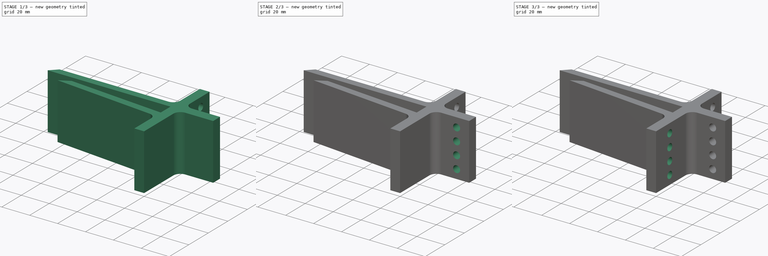
[diagram: build sequence overview — one tinted view per stage of 3, left to right]
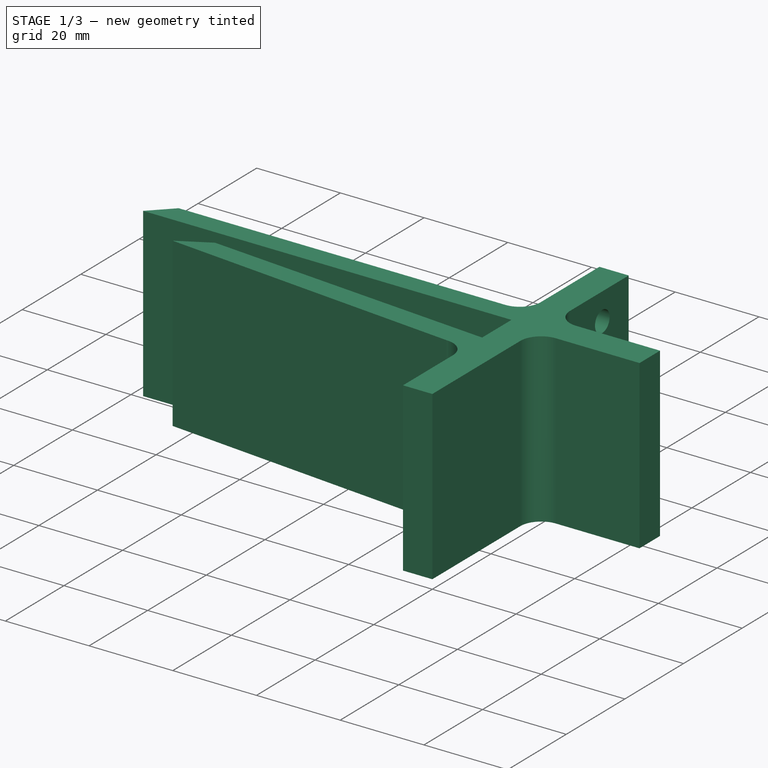
[diagram: stage 1 of 3 — iso view after this stage's code; geometry added in this stage tinted green]
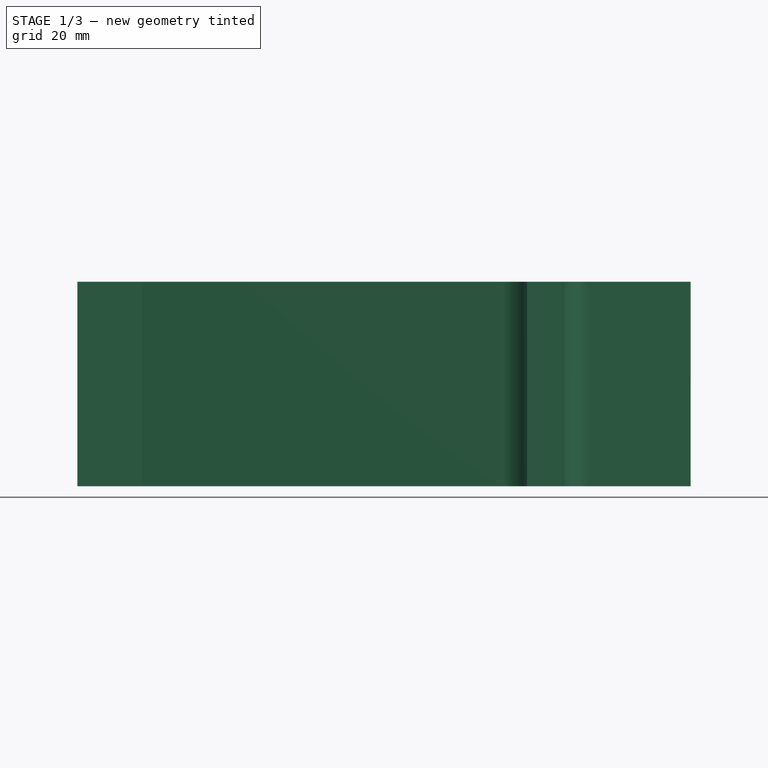
[diagram: stage 1 of 3 — front view after this stage's code; geometry added in this stage tinted green]
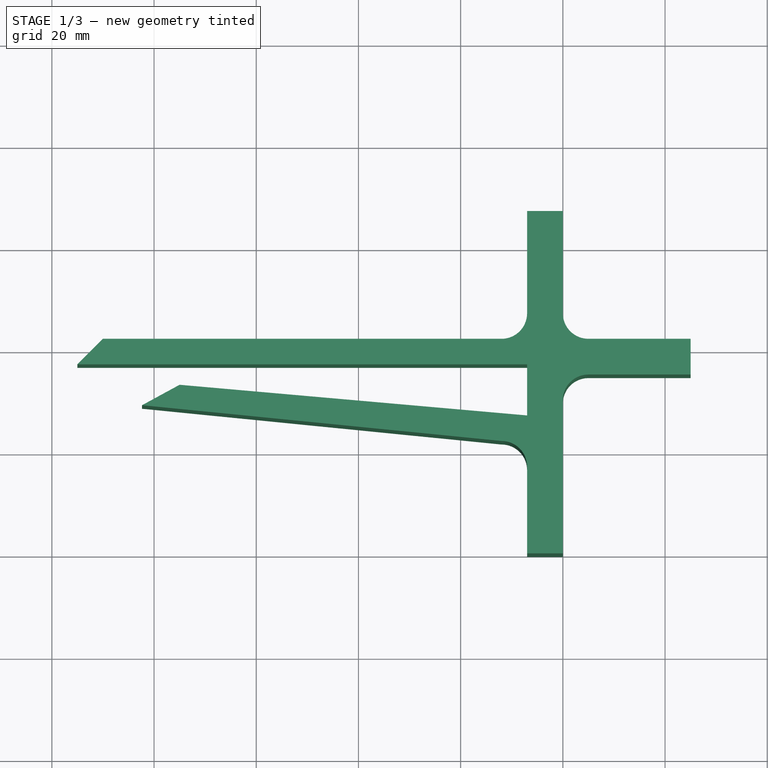
[diagram: stage 1 of 3 — top view after this stage's code; geometry added in this stage tinted green]
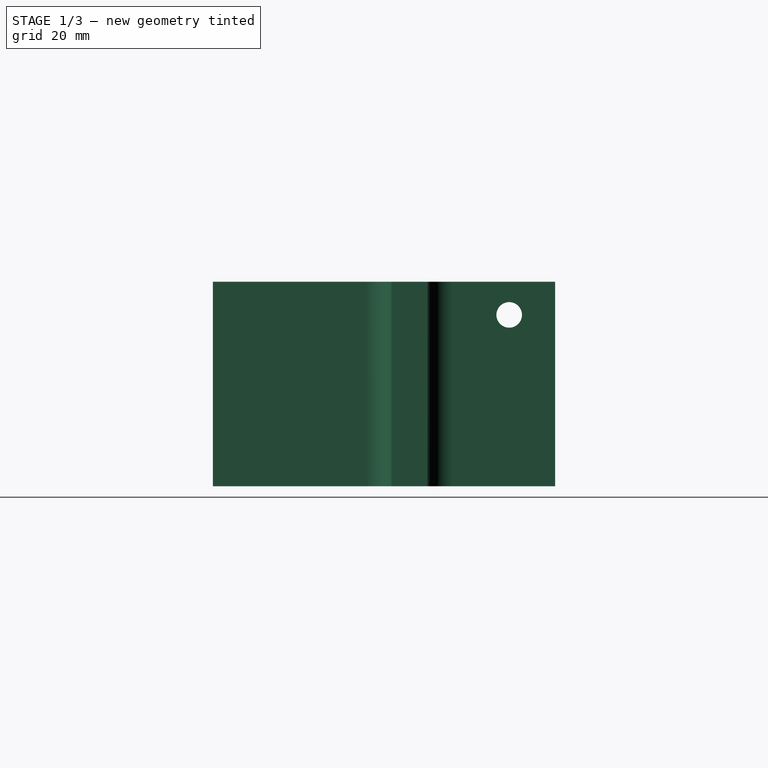
[diagram: stage 1 of 3 — right view after this stage's code; geometry added in this stage tinted green]
FCSTD DOCUMENT  (FreeCAD 0.15R4671 (Git))
Label: tubeHolderArrondis
License: CC-BY 3.0
LicenseURL: http://creativecommons.org/licenses/by/3.0/
objects: Sketcher::SketchObject×4, PartDesign::Pocket×3, PartDesign::LinearPattern×3, PartDesign::Pad×1
note: 15 computed .brp shape members not serialized (recipe doc carries the construction recipe); baked Part::Feature solids carry a one-line shape summary decoded from their .brp

FEATURE [Sketcher::SketchObject] Sketch  label="Profil"
  sketch-geometry (20):
    g0: LineSegment StartX=-7 StartY=0 StartZ=0 EndX=0 EndY=0 EndZ=0
    g1: LineSegment StartX=0 StartY=0 StartZ=0 EndX=0 EndY=30 EndZ=0
    g2: LineSegment StartX=5 StartY=35 StartZ=0 EndX=25 EndY=35 EndZ=0
    g3: ArcOfCircle CenterX=5 CenterY=30 CenterZ=0 NormalX=0 NormalY=0 NormalZ=1 Radius=5 StartAngle=1.5708 EndAngle=3.14159
    g4: LineSegment StartX=25 StartY=35 StartZ=0 EndX=25 EndY=42 EndZ=0
    g5: LineSegment StartX=25 StartY=42 StartZ=0 EndX=5 EndY=42 EndZ=0
    g6: LineSegment StartX=0 StartY=47 StartZ=0 EndX=0 EndY=67 EndZ=0
    g7: ArcOfCircle CenterX=5 CenterY=47 CenterZ=0 NormalX=0 NormalY=0 NormalZ=1 Radius=5 StartAngle=3.14159 EndAngle=4.71239
    g8: LineSegment StartX=0 StartY=67 StartZ=0 EndX=-7 EndY=67 EndZ=0
    g9: LineSegment StartX=-7 StartY=67 StartZ=0 EndX=-7 EndY=47 EndZ=0
    g10: ArcOfCircle CenterX=-12 CenterY=47 CenterZ=0 NormalX=0 NormalY=0 NormalZ=1 Radius=5 StartAngle=4.71239 EndAngle=6.28319
    g11: LineSegment StartX=-90 StartY=42 StartZ=0 EndX=-95 EndY=37 EndZ=0
    g12: LineSegment StartX=-95 StartY=37 StartZ=0 EndX=-7 EndY=37 EndZ=0
    g13: LineSegment StartX=-7 StartY=37 StartZ=0 EndX=-7 EndY=27 EndZ=0
    g14: LineSegment StartX=-7 StartY=27 StartZ=0 EndX=-75 EndY=33 EndZ=0
    g15: LineSegment StartX=-75 StartY=33 StartZ=0 EndX=-82.3516 EndY=29 EndZ=0
    g16: LineSegment StartX=-82.3516 StartY=29 StartZ=0 EndX=-12 EndY=22 EndZ=0
    g17: LineSegment StartX=-7 StartY=17 StartZ=0 EndX=-7 EndY=0 EndZ=0
    g18: ArcOfCircle CenterX=-12 CenterY=17 CenterZ=0 NormalX=0 NormalY=0 NormalZ=1 Radius=5 StartAngle=0 EndAngle=1.5708
    g19: LineSegment StartX=-12 StartY=42 StartZ=0 EndX=-90 EndY=42 EndZ=0
  constraints (58):
    c: DistanceX(g-1,g0) = -7
    c: Coincident(g1,g-1)
    c: Vertical(g1)
    c: Horizontal(g2)
    c: Coincident(g2,g3)
    c: Coincident(g1,g3)
    c: Coincident(g0,g1)
    c: Coincident(g4,g2)
    c: Vertical(g4)
    c: DistanceY(g4) = 7
    c: Coincident(g5,g4)
    c: Horizontal(g5)
    c: DistanceX(g5) = -20
    c: Vertical(g6)
    c: Tangent(g6,g3)
    c: DistanceY(g6) = 20
    c: Coincident(g7,g5)
    c: Coincident(g6,g7)
    c: Coincident(g8,g6)
    c: Horizontal(g8)
    c: DistanceX(g8) = -7
    c: Coincident(g9,g8)
    c: Vertical(g9)
    c: DistanceX(g6,g5) = 5
    c: DistanceY(g6,g5) = -5
    c: DistanceY(g8,g9) = -20
    c: DistanceX(g10,g9) = 5
    c: DistanceY(g9,g10) = -5
    c: Coincident(g10,g9)
    c: Radius(g10) = 5
    c: Radius(g7) = 5
    c: Horizontal(g12)
    c: Coincident(g11,g12)
    c: Radius(g3) = 5
    c: DistanceX(g12,g0) = 0
    c: DistanceY(g2,g1) = -5
    c: Vertical(g13)
    c: Coincident(g13,g14)
    c: Coincident(g14,g15)
    c: Coincident(g15,g16)
    c: Coincident(g17,g0)
    c: Vertical(g17)
    c: Coincident(g12,g13)
    c: DistanceY(g12,g13) = -10
    c: DistanceY(g13,g16) = -5
    c: DistanceX(g16,g17) = 5
    c: DistanceY(g16,g17) = -5
    c: Coincident(g18,g16)
    c: Coincident(g18,g17)
    c: Radius(g18) = 5
    c: DistanceY(g14,g11) = 4
    c: DistanceY(g10,g12) = -5
    c: DistanceY(g14,g15) = -4
    c: Horizontal(g0)
    c: Coincident(g19,g10)
    c: Coincident(g19,g11)
    c: Horizontal(g19)
    c: Distance(g17) = 17
FEATURE [PartDesign::Pad] Pad  label="Corps"
  Length = 40
  Length2 = 100
  Sketch = -> Sketch
  Type = 0
FEATURE [Sketcher::SketchObject] Sketch001  label="Trou arrière"
  Placement = pos=(0,0,0) rot=(0.57735,0.57735,0.57735;2.0944rad)
  Support = -> Pad [Face9]
  sketch-geometry (1):
    g0: Circle CenterX=58 CenterY=33.5231 CenterZ=0 NormalX=0 NormalY=0 NormalZ=1 Radius=2.5
  constraints (1):
    c: Radius(g0) = 2.5
FEATURE [PartDesign::Pocket] Pocket  label="Perçage trou arrière"
  Length = 7
  Sketch = -> Sketch001
  Type = 0
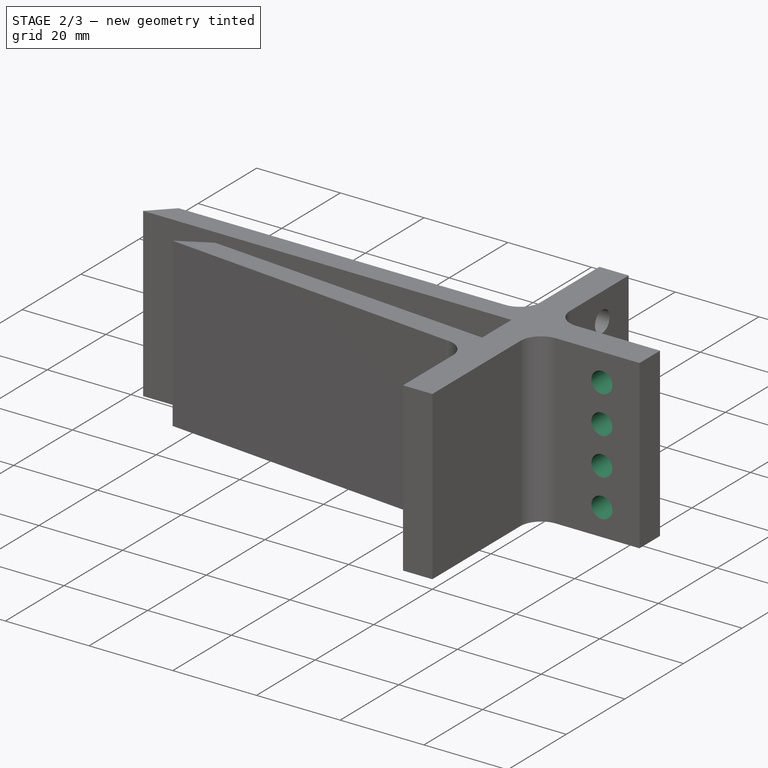
[diagram: stage 2 of 3 — iso view after this stage's code; geometry added in this stage tinted green]
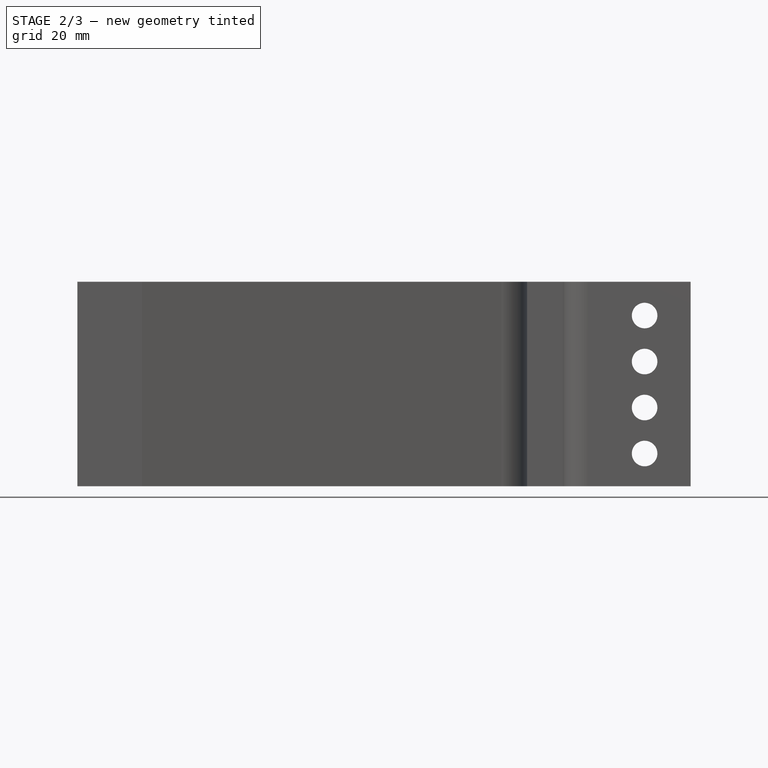
[diagram: stage 2 of 3 — front view after this stage's code; geometry added in this stage tinted green]
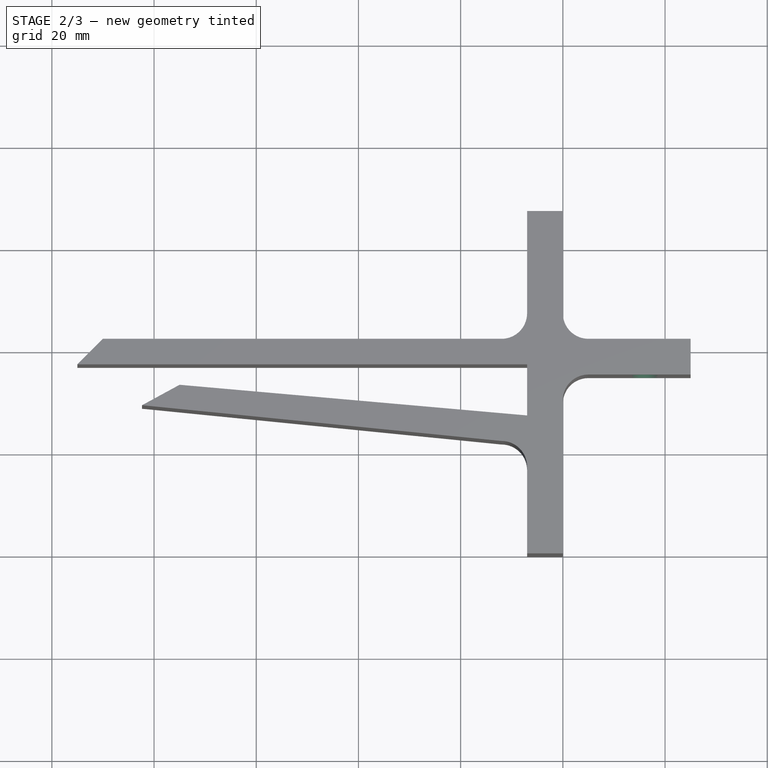
[diagram: stage 2 of 3 — top view after this stage's code; geometry added in this stage tinted green]
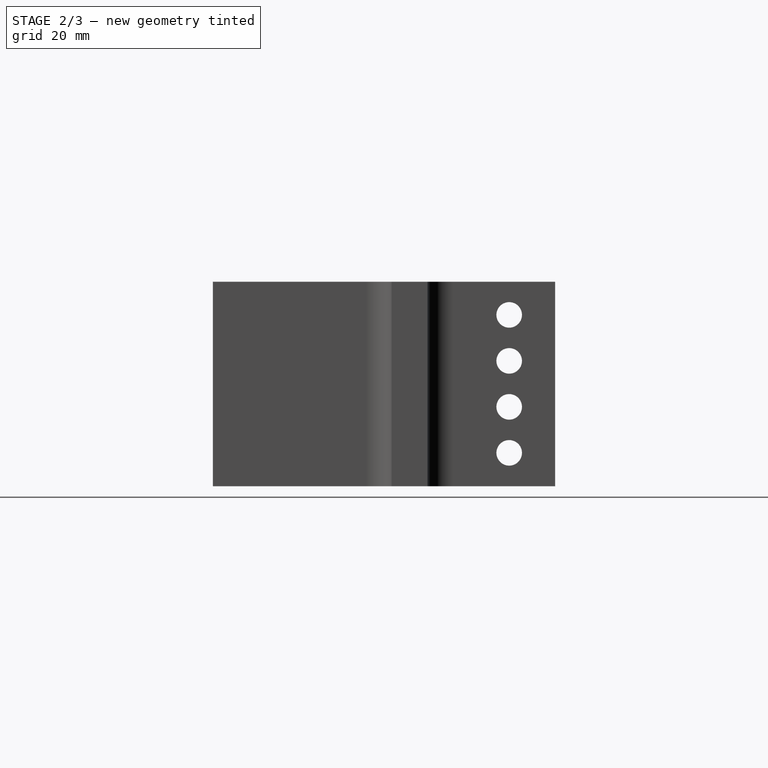
[diagram: stage 2 of 3 — right view after this stage's code; geometry added in this stage tinted green]
FEATURE [PartDesign::LinearPattern] LinearPattern  label="Ligne trous arrière"
  Direction = -> Sketch001 [V_Axis]
  Length = 27
  Occurrences = 4
  Originals = -> [Pocket]
  Reversed = true
FEATURE [Sketcher::SketchObject] Sketch002  label="Trou haut"
  Placement = pos=(0,35,0) rot=(1,0,0;1.5708rad)
  Support = -> LinearPattern [Face9]
  sketch-geometry (1):
    g0: Circle CenterX=16 CenterY=33.3959 CenterZ=0 NormalX=0 NormalY=0 NormalZ=1 Radius=2.5
  constraints (1):
    c: Radius(g0) = 2.5
FEATURE [PartDesign::Pocket] Pocket001  label="Perçage trou haut"
  Length = 7
  Sketch = -> Sketch002
  Type = 0
FEATURE [PartDesign::LinearPattern] LinearPattern001  label="Ligne trous haut"
  Direction = -> Sketch002 [V_Axis]
  Length = 27
  Occurrences = 4
  Originals = -> [Pocket001]
  Reversed = true
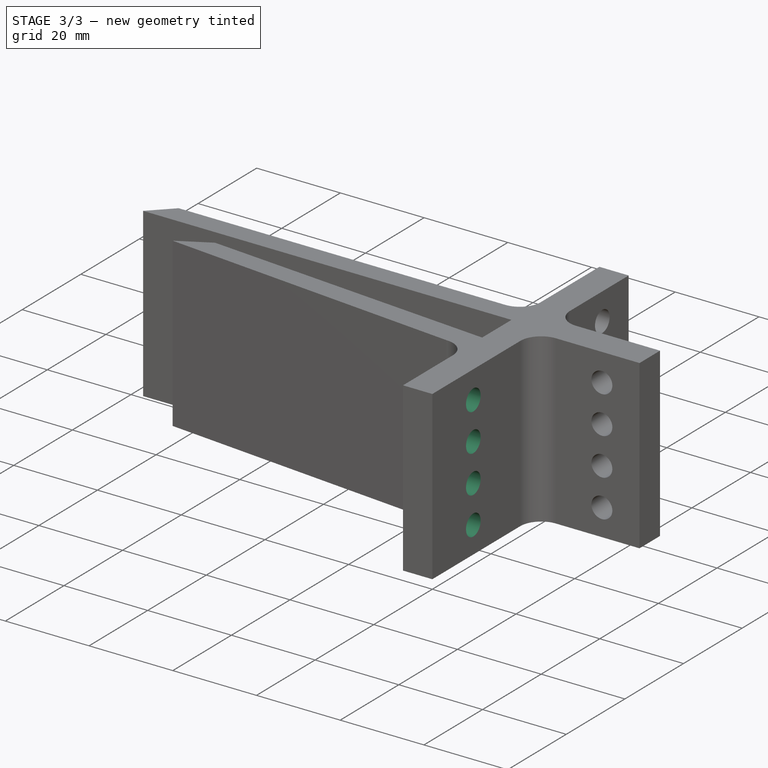
[diagram: stage 3 of 3 — iso view after this stage's code; geometry added in this stage tinted green]
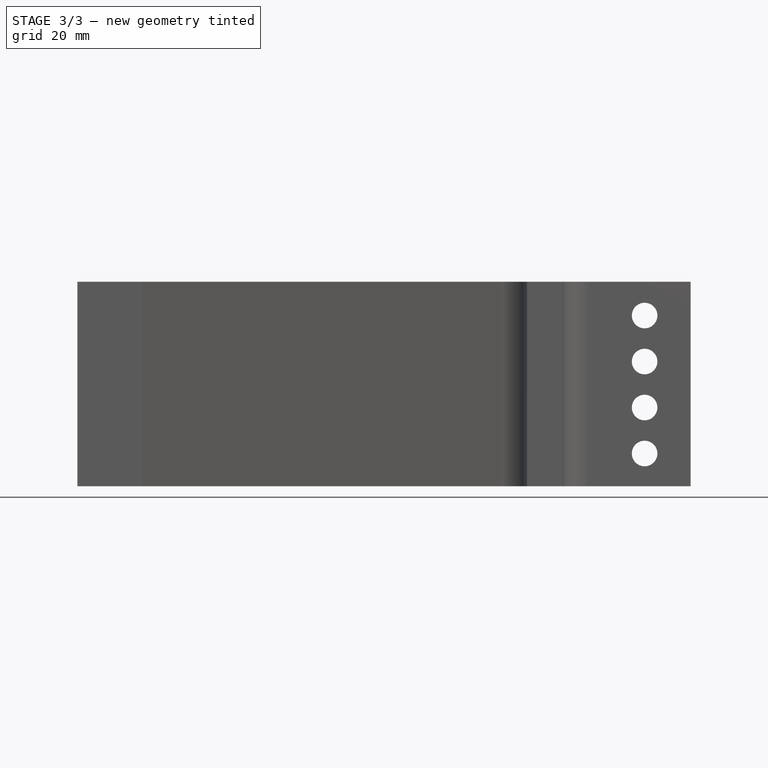
[diagram: stage 3 of 3 — front view after this stage's code; geometry added in this stage tinted green]
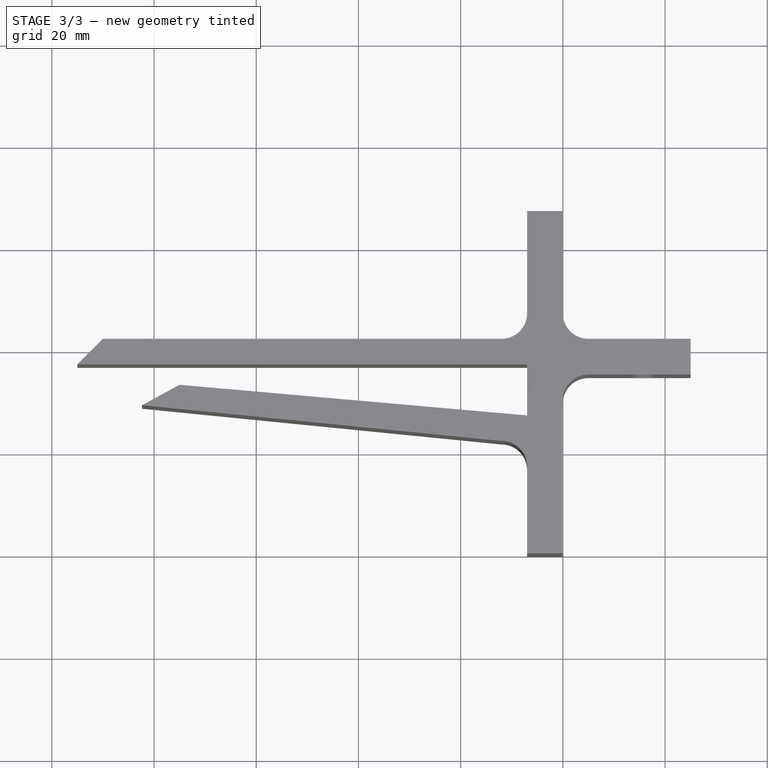
[diagram: stage 3 of 3 — top view after this stage's code; geometry added in this stage tinted green]
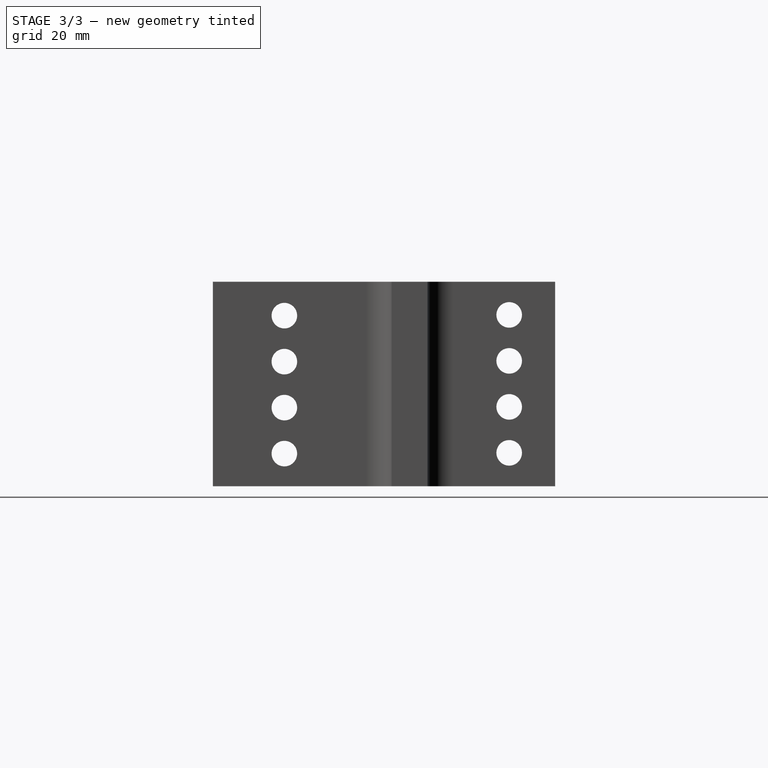
[diagram: stage 3 of 3 — right view after this stage's code; geometry added in this stage tinted green]
FEATURE [Sketcher::SketchObject] Sketch003  label="Trou avant"
  Placement = pos=(0,0,0) rot=(0.57735,0.57735,0.57735;2.0944rad)
  Support = -> LinearPattern001 [Face7]
  sketch-geometry (1):
    g0: Circle CenterX=14 CenterY=33.3782 CenterZ=0 NormalX=0 NormalY=0 NormalZ=1 Radius=2.5
  constraints (1):
    c: Radius(g0) = 2.5
FEATURE [PartDesign::Pocket] Pocket002  label="Perçage trou avant"
  Length = 7
  Sketch = -> Sketch003
  Type = 0
FEATURE [PartDesign::LinearPattern] LinearPattern002  label="Ligne trous avant"
  Direction = -> Sketch003 [V_Axis]
  Length = 27
  Occurrences = 4
  Originals = -> [Pocket002]
  Reversed = true
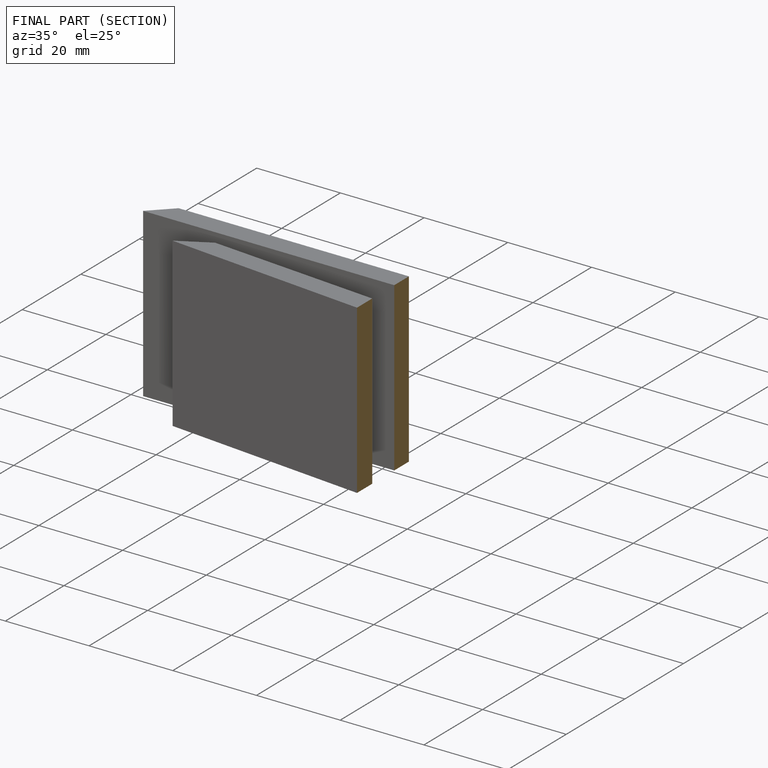
[diagram: finished part — half-section view (interior)]
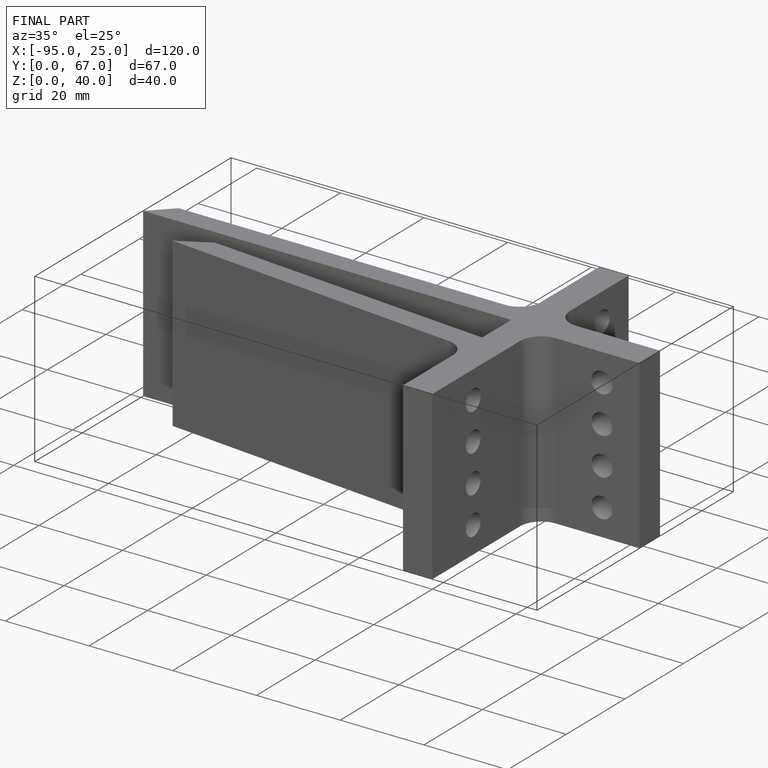
[diagram: finished part — iso view with bounding-box wireframe]
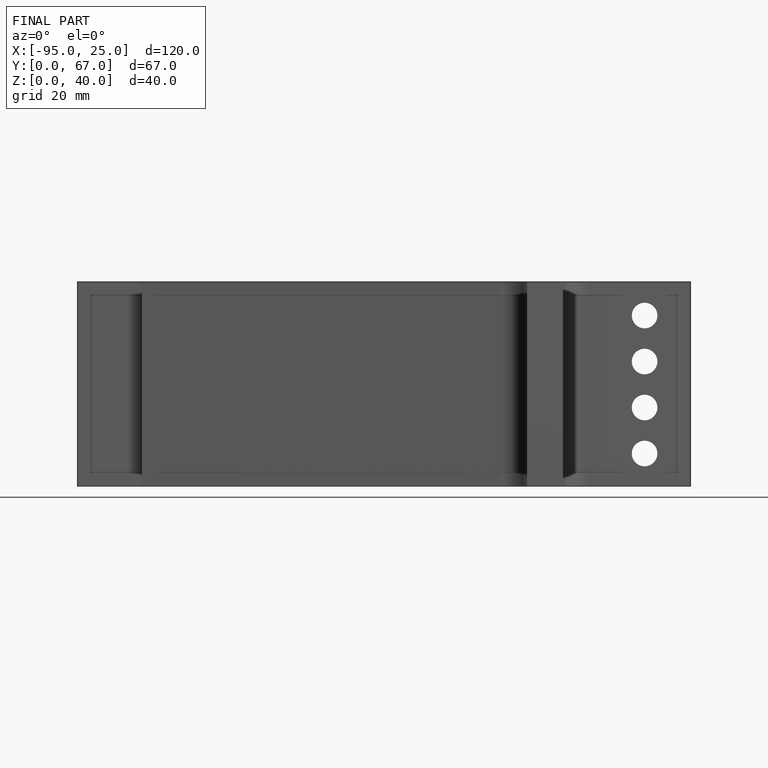
[diagram: finished part — front view with bounding-box wireframe]
